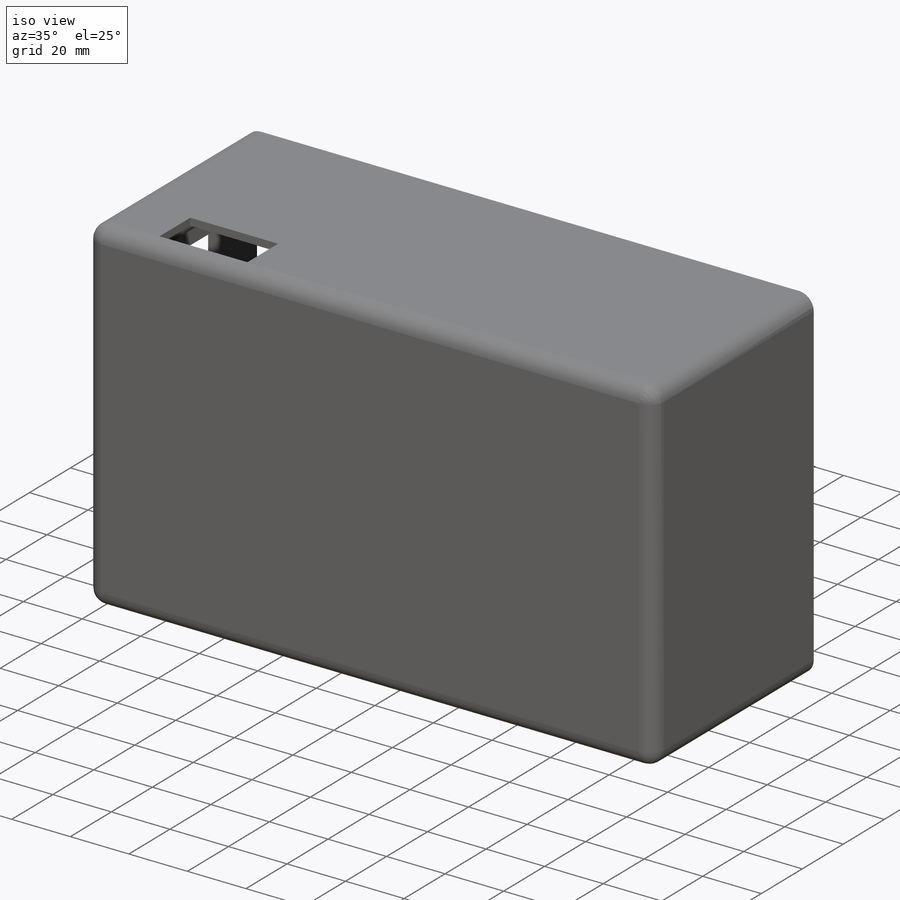
[diagram: iso view]
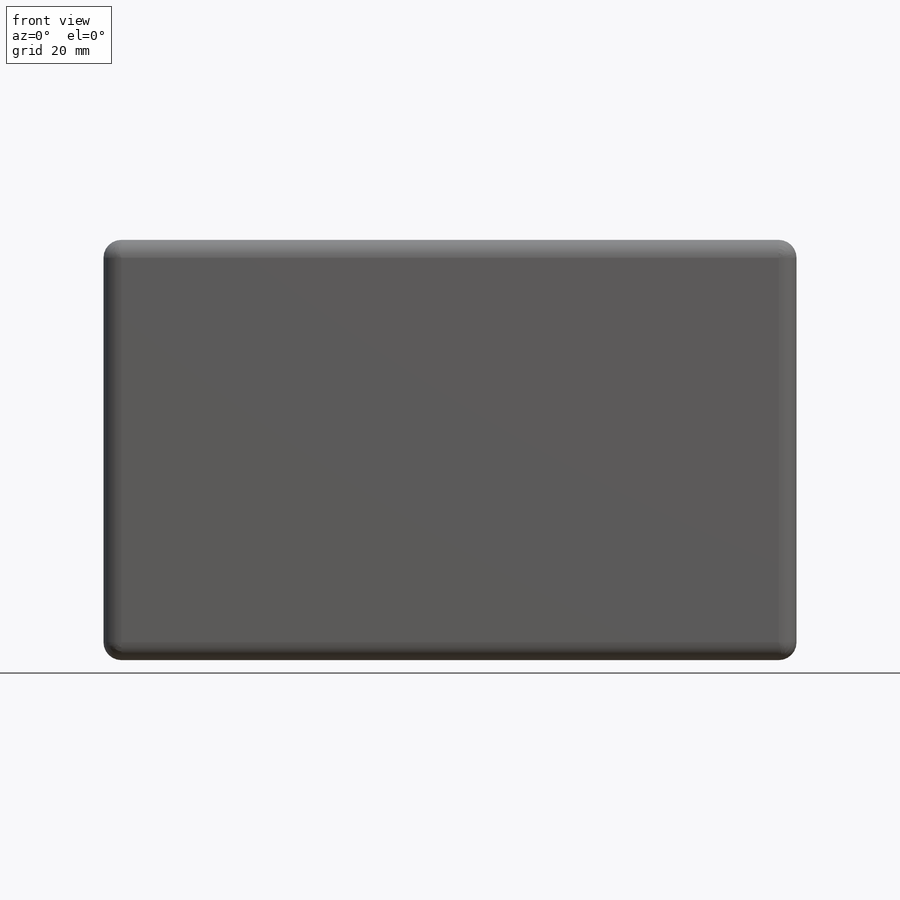
[diagram: front view]
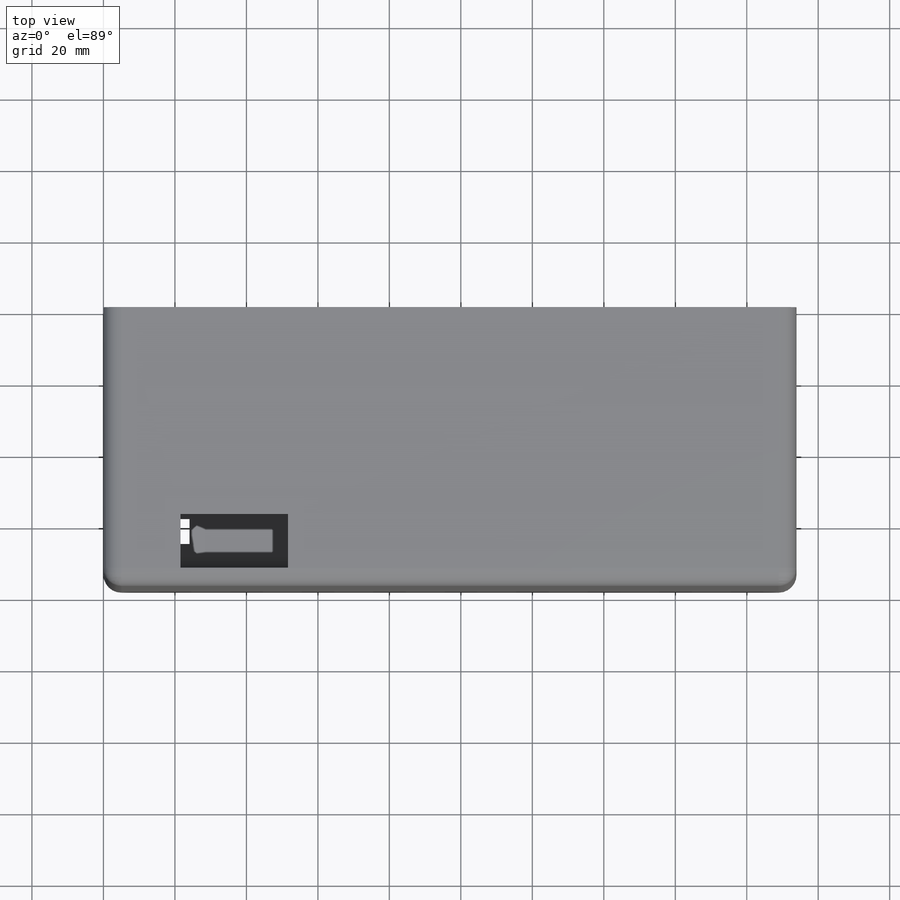
[diagram: top view]
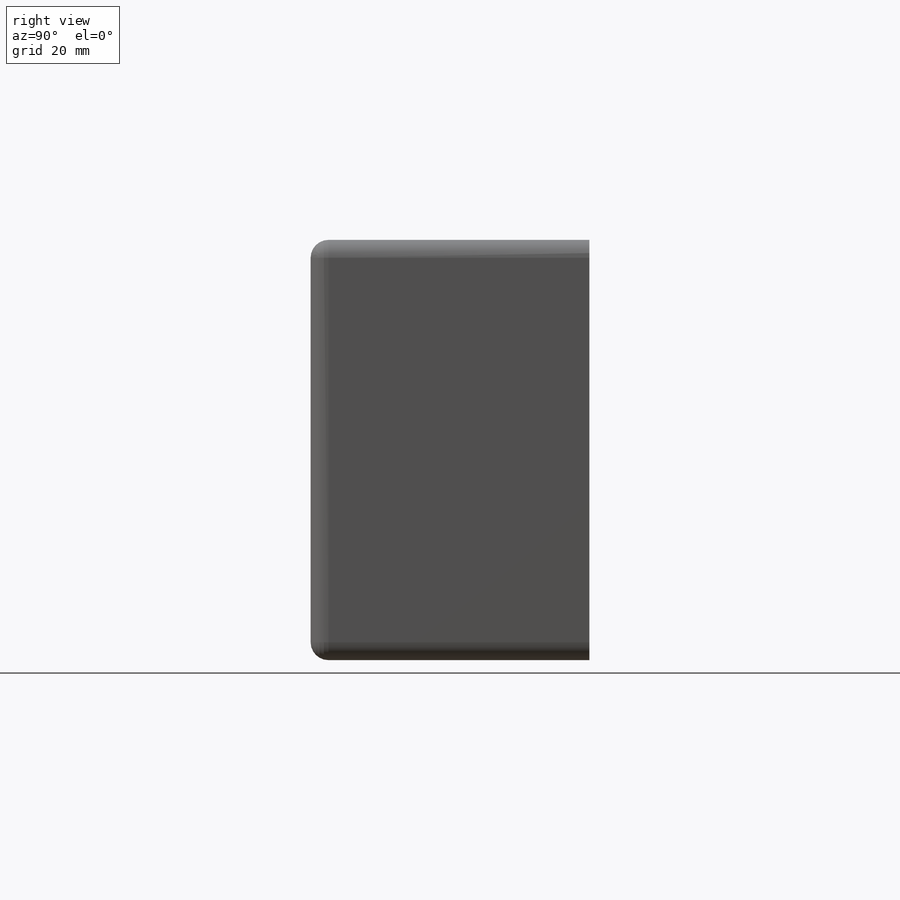
[diagram: right view]
SOLIDWORKS PART (.sldprt)
format: sldprt  version: not decoded by parser v0  size: 718,336 bytes
history: native  units: mm
features: sketch x21, fillet x11, cut_extrude x9, extrude x6, plane x4, mirror x4, material x1 (+12 scaffold rows collapsed)
feature tree (68):
  scaffold x12  (default folders/planes/origin — collapsed)
  material  "Material <not specified>"
  sketch  "Sketch3"  dims[D1=117.6mm D2=193.93mm]
  extrude  "Boss-Extrude1"  Depth=78mm
  sketch  "Sketch4"  dims[c1.D1=187.5mm c1.D2=3.75mm c1.D3=114.0mm c1.D4=2.5mm c2.D1=2.5mm c2.D3=3.75mm]
  cut_extrude  "Cut-Extrude1"  Depth=73mm
  sketch  "Sketch5"  dims[c1.D1=9.0mm c1.D2=8.54mm c1.D3=8.94mm c2.D2=8.83mm c2.D3=8.76mm]
  plane  "Plane1"  Offset=51.44mm
  plane  "Plane2"  Offset=3.3mm
  sketch  "Sketch14"  dims[D1=9.0mm D4=9.72mm D2=8.76mm D3=8.83mm]
  sketch  "Sketch18"  dims[D1=9.0mm D6=9.0mm D2=8.83mm D3=8.76mm D4=8.76mm D5=8.83mm]
  fillet  "Fillet1"  Radius=5mm
  fillet  "Fillet2"  Radius=5mm
  fillet  "Fillet3"  Radius=5mm
  fillet  "Fillet4"  Radius=5mm
  fillet  "Fillet5"  Radius=5mm
  sketch  "Sketch42"  dims[D1=71.5mm D2=26.5mm D3=28.0mm D4=18.0mm D5=18.1mm]
  cut_extrude  "Cut-Extrude9"  Depth=10mm
  sketch  "Sketch43"  dims[c1.D3=2.9mm c1.D4=2.9mm c1.D6=2.9mm c1.D8=2.9mm c1.D1=2.75mm c1.D2=1.25mm c1.D5=31.5mm c1.D7=76.0mm c1.D9=1.25mm c1.D10=2.75mm c1.D11=77.0mm c2.D10=76.0mm c2.D11=1.75mm c2.D7=0.0mm c3.D11=76.0mm c3.D12=31.5mm]
  cut_extrude  "Cut-Extrude11"  Depth=10mm
  sketch  "Sketch44"  dims[c1.D1=7.95mm c1.D4=7.95mm c1.D2=6.02mm c1.D3=6.08mm c2.D2=8.76mm c2.D3=8.83mm c2.D5=8.76mm c2.D6=8.83mm c2.D7=88.14mm]
  sketch  "Sketch45"
  fillet  "Fillet6"  Radius=5mm
  fillet  "Fillet7"  Radius=5mm
  fillet  "Fillet8"  Radius=5mm
  fillet  "Fillet9"  Radius=5mm
  sketch  "Sketch49"  dims[D1=9.0mm D2=9.0mm]
  extrude  "Boss-Extrude2"  Depth=62mm
  sketch  "Sketch51"  dims[D1=7.95mm]
  extrude  "Boss-Extrude3"  Depth=62mm
  plane  "Plane3"
  mirror  "Mirror1"
  sketch  "Sketch52"
  plane  "Plane4"
  mirror  "Mirror2"
  sketch  "Sketch53"  dims[D1=7.95mm]
  extrude  "Boss-Extrude4"  Depth=62mm
  sketch  "Sketch54"  dims[D1=7.95mm]
  extrude  "Boss-Extrude5"  Depth=62mm
  sketch  "Sketch55"  dims[D1=7.95mm]
  extrude  "Boss-Extrude6"  Depth=62mm
  sketch  "Sketch56"  dims[D1=6.38mm]
  cut_extrude  "Cut-Extrude12"  Depth=0.74mm
  sketch  "Sketch58"  dims[D1=4.72mm]
  cut_extrude  "Cut-Extrude13"  Depth=9.12mm
  sketch  "Sketch59"  dims[D1=3.05mm]
  cut_extrude  "Cut-Extrude14"  Depth=2.84mm
  mirror  "Mirror3"
  mirror  "Mirror4"
  fillet  "Fillet10"  Radius=5mm
  fillet  "Fillet11"  Radius=5mm
  sketch  "Sketch60"  dims[D1=30.0mm D2=15.0mm D3=5.0mm]
  cut_extrude  "Cut-Extrude15"  Depth=10mm
  sketch  "Sketch61"  dims[D1=35.0mm D2=10.0mm D3=8.0mm D4=79.0mm]
  cut_extrude  "Cut-Extrude16"  Depth=10mm
  sketch  "Sketch62"  dims[D1=6.0mm D2=7.0mm]
  cut_extrude  "Cut-Extrude17"  Depth=10mm
decode coverage: 45 of 51 modeling features carry decoded parameters
note: suppression state not decoded; provenance and decode notes live in map.json
